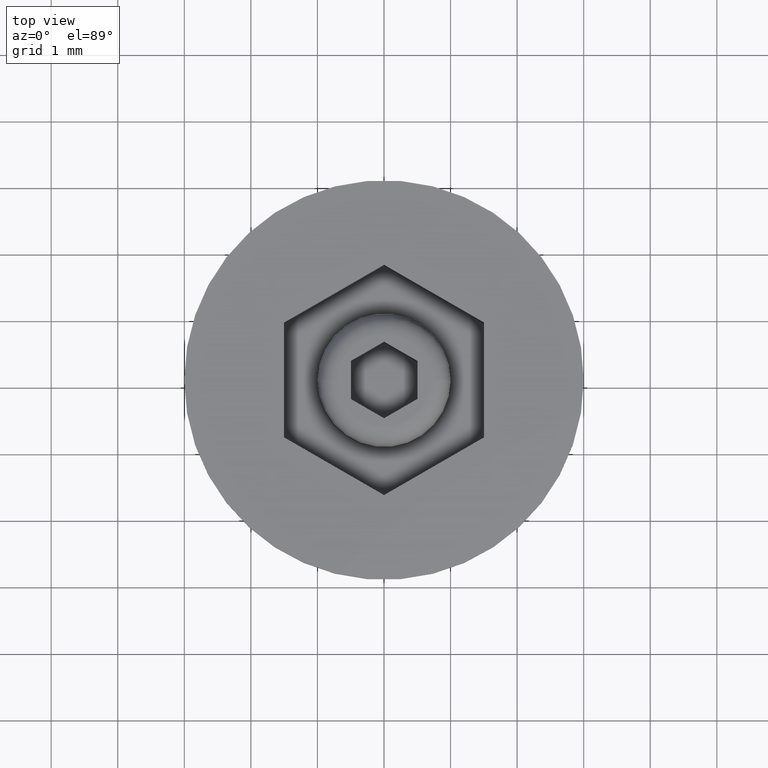
[diagram: clean part render]
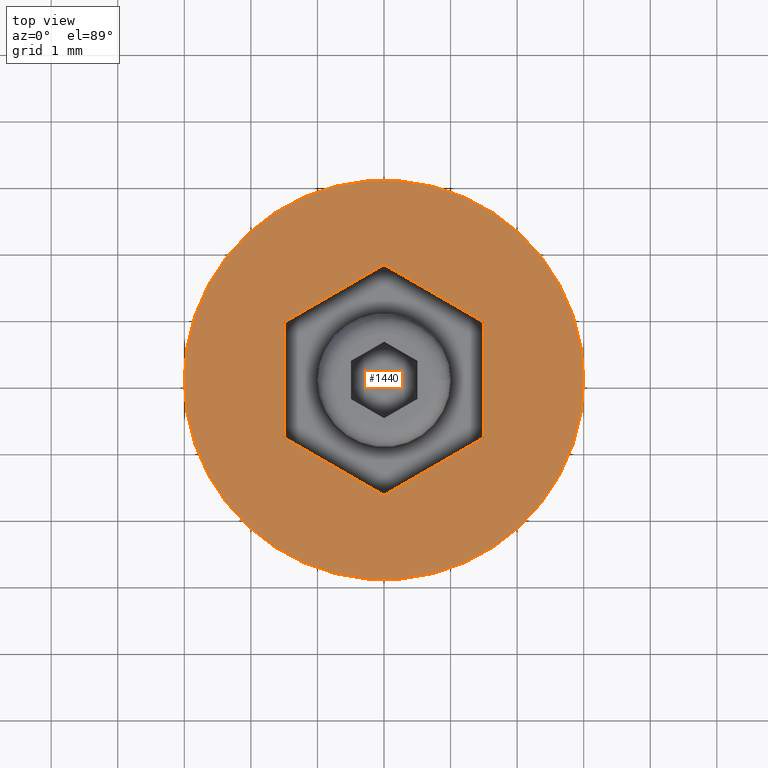
[diagram: same view with one face highlighted and labeled with its STEP entity id]
A machine part, top view. The second image highlights one B-rep face of the part: STEP entity #1440.
In plain terms, the highlighted planar face has unit normal (0, -0, 1).
Its self-contained STEP definition (entity closure, byte-faithful):
#16 = CARTESIAN_POINT ( 'NONE',  ( -1.500000000000000444, 0.8660254037844389297, 0.000000000000000000 ) ) ;
#36 = ORIENTED_EDGE ( 'NONE', *, *, #1529, .F. ) ;
#94 = VECTOR ( 'NONE', #1787, 1000.000000000000227 ) ;
#96 = CIRCLE ( 'NONE', #809, 3.000000000000000000 ) ;
#102 = EDGE_CURVE ( 'NONE', #1219, #885, #1064, .T. ) ;
#118 = AXIS2_PLACEMENT_3D ( 'NONE', #534, #838, #427 ) ;
#121 = PLANE ( 'NONE',  #118 ) ;
#168 = VERTEX_POINT ( 'NONE', #1297 ) ;
#186 = CARTESIAN_POINT ( 'NONE',  ( -1.500000000000000444, -0.8660254037844387076, 0.000000000000000000 ) ) ;
#251 = EDGE_CURVE ( 'NONE', #865, #1377, #1192, .T. ) ;
#339 = DIRECTION ( 'NONE',  ( 0.000000000000000000, 1.000000000000000000, 0.000000000000000000 ) ) ;
#345 = EDGE_CURVE ( 'NONE', #1084, #168, #779, .T. ) ;
#388 = EDGE_CURVE ( 'NONE', #1377, #865, #96, .T. ) ;
#412 = ORIENTED_EDGE ( 'NONE', *, *, #1705, .F. ) ;
#427 = DIRECTION ( 'NONE',  ( 1.000000000000000000, 0.000000000000000000, 0.000000000000000000 ) ) ;
#430 = DIRECTION ( 'NONE',  ( 0.8660254037844388186, 0.4999999999999996669, 0.000000000000000000 ) ) ;
#474 = ORIENTED_EDGE ( 'NONE', *, *, #994, .F. ) ;
#491 = VERTEX_POINT ( 'NONE', #1784 ) ;
#494 = ORIENTED_EDGE ( 'NONE', *, *, #251, .T. ) ;
#498 = CARTESIAN_POINT ( 'NONE',  ( 1.500000000000000444, 0.8660254037844385966, 0.000000000000000000 ) ) ;
#534 = CARTESIAN_POINT ( 'NONE',  ( 0.000000000000000000, 0.000000000000000000, 0.000000000000000000 ) ) ;
#555 = DIRECTION ( 'NONE',  ( -0.000000000000000000, -0.000000000000000000, 1.000000000000000000 ) ) ;
#579 = LINE ( 'NONE', #1534, #1246 ) ;
#609 = ORIENTED_EDGE ( 'NONE', *, *, #388, .T. ) ;
#617 = VECTOR ( 'NONE', #1533, 1000.000000000000000 ) ;
#709 = ORIENTED_EDGE ( 'NONE', *, *, #1586, .F. ) ;
#743 = LINE ( 'NONE', #1163, #1067 ) ;
#775 = EDGE_LOOP ( 'NONE', ( #494, #609 ) ) ;
#779 = LINE ( 'NONE', #186, #903 ) ;
#809 = AXIS2_PLACEMENT_3D ( 'NONE', #1162, #1726, #1200 ) ;
#836 = CARTESIAN_POINT ( 'NONE',  ( 0.000000000000000000, 0.000000000000000000, 0.000000000000000000 ) ) ;
#838 = DIRECTION ( 'NONE',  ( 0.000000000000000000, -0.000000000000000000, 1.000000000000000000 ) ) ;
#865 = VERTEX_POINT ( 'NONE', #1085 ) ;
#885 = VERTEX_POINT ( 'NONE', #1625 ) ;
#903 = VECTOR ( 'NONE', #1455, 1000.000000000000114 ) ;
#913 = VERTEX_POINT ( 'NONE', #1797 ) ;
#971 = CARTESIAN_POINT ( 'NONE',  ( -3.000000000000000000, 3.673940397442059868E-16, 0.000000000000000000 ) ) ;
#994 = EDGE_CURVE ( 'NONE', #168, #913, #579, .T. ) ;
#1035 = CARTESIAN_POINT ( 'NONE',  ( 1.500000000000000444, 0.8660254037844385966, 0.000000000000000000 ) ) ;
#1064 = LINE ( 'NONE', #498, #94 ) ;
#1067 = VECTOR ( 'NONE', #1428, 1000.000000000000114 ) ;
#1084 = VERTEX_POINT ( 'NONE', #1677 ) ;
#1085 = CARTESIAN_POINT ( 'NONE',  ( 3.000000000000000000, 0.000000000000000000, 0.000000000000000000 ) ) ;
#1162 = CARTESIAN_POINT ( 'NONE',  ( 0.000000000000000000, 0.000000000000000000, 0.000000000000000000 ) ) ;
#1163 = CARTESIAN_POINT ( 'NONE',  ( 0.000000000000000000, 1.732050807568877415, 0.000000000000000000 ) ) ;
#1192 = CIRCLE ( 'NONE', #1456, 3.000000000000000000 ) ;
#1200 = DIRECTION ( 'NONE',  ( 1.000000000000000000, 0.000000000000000000, 0.000000000000000000 ) ) ;
#1219 = VERTEX_POINT ( 'NONE', #1035 ) ;
#1246 = VECTOR ( 'NONE', #430, 1000.000000000000114 ) ;
#1279 = FACE_OUTER_BOUND ( 'NONE', #775, .T. ) ;
#1297 = CARTESIAN_POINT ( 'NONE',  ( -3.346587165010555089E-16, -1.732050807568877859, 0.000000000000000000 ) ) ;
#1347 = ORIENTED_EDGE ( 'NONE', *, *, #102, .F. ) ;
#1377 = VERTEX_POINT ( 'NONE', #971 ) ;
#1385 = LINE ( 'NONE', #16, #617 ) ;
#1400 = DIRECTION ( 'NONE',  ( 1.000000000000000000, 0.000000000000000000, 0.000000000000000000 ) ) ;
#1428 = DIRECTION ( 'NONE',  ( -0.8660254037844387076, -0.4999999999999997780, 0.000000000000000000 ) ) ;
#1440 = ADVANCED_FACE ( 'NONE', ( #1666, #1279 ), #121, .T. ) ;
#1444 = VECTOR ( 'NONE', #339, 1000.000000000000000 ) ;
#1455 = DIRECTION ( 'NONE',  ( 0.8660254037844384856, -0.5000000000000002220, 0.000000000000000000 ) ) ;
#1456 = AXIS2_PLACEMENT_3D ( 'NONE', #836, #555, #1400 ) ;
#1490 = ORIENTED_EDGE ( 'NONE', *, *, #345, .F. ) ;
#1506 = EDGE_LOOP ( 'NONE', ( #1347, #709, #474, #1490, #412, #36 ) ) ;
#1529 = EDGE_CURVE ( 'NONE', #885, #491, #743, .T. ) ;
#1533 = DIRECTION ( 'NONE',  ( 0.000000000000000000, -1.000000000000000000, 0.000000000000000000 ) ) ;
#1534 = CARTESIAN_POINT ( 'NONE',  ( -3.346587165010555089E-16, -1.732050807568877859, 0.000000000000000000 ) ) ;
#1577 = LINE ( 'NONE', #1729, #1444 ) ;
#1586 = EDGE_CURVE ( 'NONE', #913, #1219, #1577, .T. ) ;
#1625 = CARTESIAN_POINT ( 'NONE',  ( 1.084202172485504434E-16, 1.732050807568877637, 0.000000000000000000 ) ) ;
#1666 = FACE_BOUND ( 'NONE', #1506, .T. ) ;
#1677 = CARTESIAN_POINT ( 'NONE',  ( -1.500000000000000444, -0.8660254037844387076, 0.000000000000000000 ) ) ;
#1705 = EDGE_CURVE ( 'NONE', #491, #1084, #1385, .T. ) ;
#1726 = DIRECTION ( 'NONE',  ( -0.000000000000000000, -0.000000000000000000, 1.000000000000000000 ) ) ;
#1729 = CARTESIAN_POINT ( 'NONE',  ( 1.500000000000000444, -0.8660254037844393737, 0.000000000000000000 ) ) ;
#1784 = CARTESIAN_POINT ( 'NONE',  ( -1.500000000000000444, 0.8660254037844389297, 0.000000000000000000 ) ) ;
#1787 = DIRECTION ( 'NONE',  ( -0.8660254037844385966, 0.4999999999999998890, 0.000000000000000000 ) ) ;
#1797 = CARTESIAN_POINT ( 'NONE',  ( 1.500000000000000444, -0.8660254037844393737, 0.000000000000000000 ) ) ;